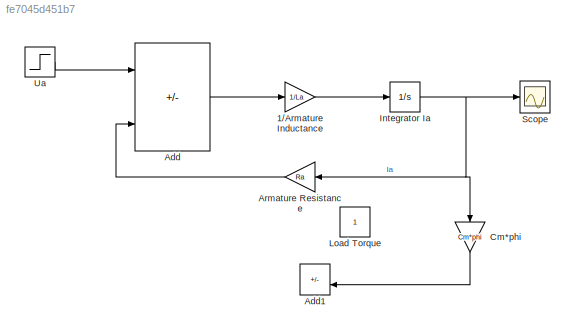
MODEL slx_fe7045d451b7
KIND model
CONFIG AbsTol = auto
CONFIG EnableMultiTasking = off
CONFIG FixedStep = auto
CONFIG MaxStep = auto
CONFIG MinStep = auto
CONFIG RelTol = 1e-3
CONFIG SampleTimeConstraint = Unconstrained
CONFIG SolverName = VariableStepAuto
CONFIG StartTime = 0.0
CONFIG StopTime = 10.0
WORKSPACE source: mxarray member
WORKSPACE Cm = 38.2
WORKSPACE J = 0.012
WORKSPACE La = 0.004
WORKSPACE Ra = 0.25
WORKSPACE phi = 0.04
BLOCK [Gain] 1//Armature Inductance
  Gain = 1/La
BLOCK [Sum] Add
  IconShape = rectangular
  Inputs = +--
BLOCK [Sum] Add1
  IconShape = rectangular
  Inputs = -+
  NameLocation = top
BLOCK [Gain] Armature Resistance
  Gain = Ra
  NameLocation = top
BLOCK [Gain] Cm*phi
  Gain = Cm*phi
  NameLocation = left
BLOCK [Integrator] Integrator Ia
BLOCK [Constant] Load Torque
BLOCK [Scope] Scope
  Floating = off
  NumInputPorts = 1
  ScopeSpecificationString = Simulink.scopes.TimeScopeBlockCfg('CurrentConfiguration', extmgr.ConfigurationSet(extmgr.Configuration('Core','General UI',true),extmgr.Configuration('Core','Source UI',true),extmgr.Configuration('Sources','WiredSimulink',true),extmgr.Configuration('Visuals','Time Domain',true,'SerializedDisplays',{struct('MinYLimReal','-10','MaxYLimReal','10','YLabelReal','','MinYLimMag','0','MaxYLimMag','10','Le...<+810ch>
BLOCK [Step] Ua
  After = 20
  SampleTime = 0
  Time = 0.02
LINE 1//Armature Inductance:1 -> Integrator Ia:1
LINE Add:1 -> 1//Armature Inductance:1
LINE Armature Resistance:1 -> Add:3
LINE Cm*phi:1 -> Add1:2
NET Integrator Ia:1 -> Armature Resistance:1, Cm*phi:1, Scope:1
LINE Ua:1 -> Add:1
note: NET lines group one-source signal fan-out (src -> all destinations, sorted); 1:1 wires keep LINE
